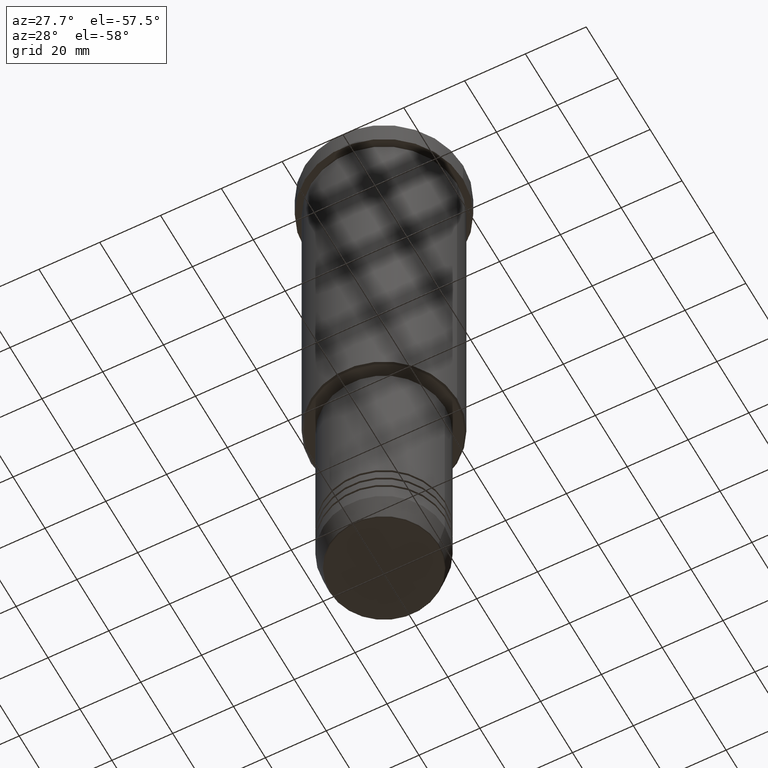
[diagram: clean part render]
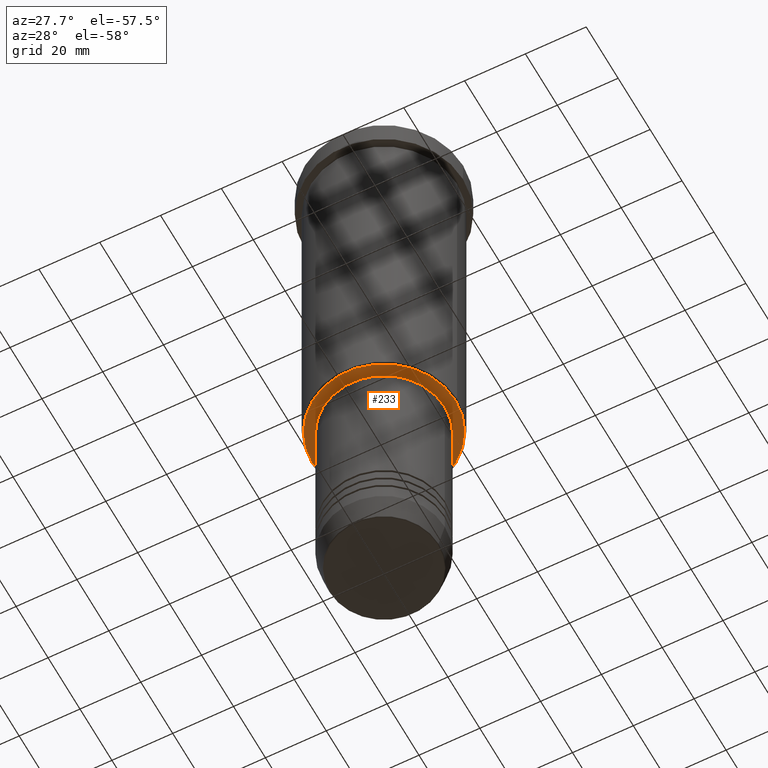
[diagram: same view with one face highlighted and labeled with its STEP entity id]
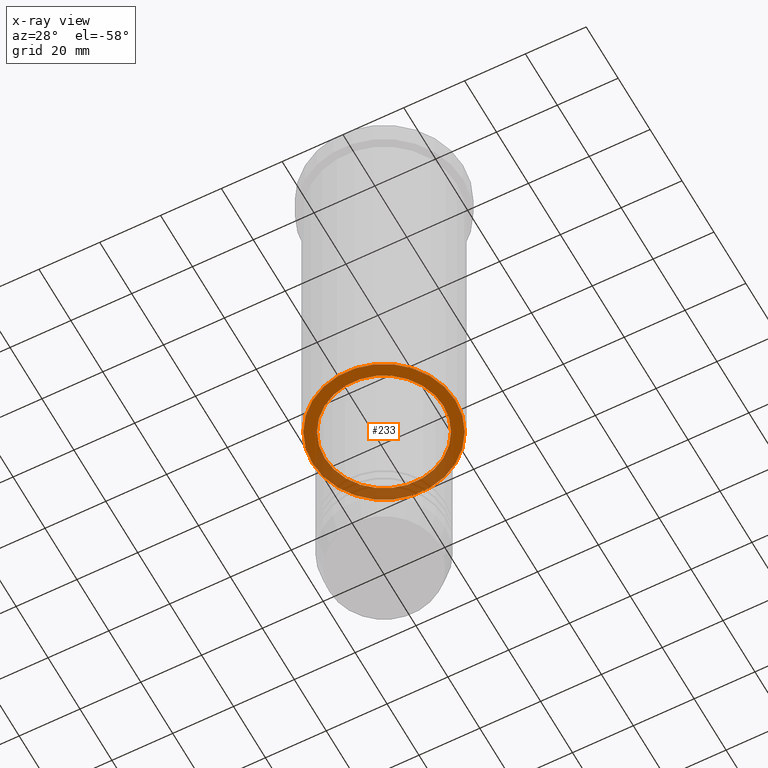
[diagram: x-ray of the same camera — body ghosted, the highlighted face saturated]
A machine part, auxiliary view. The second image highlights one B-rep face of the part: STEP entity #233.
The next image is the same camera in x-ray: the body ghosted, the highlighted face saturated — about 36% of this face is hidden behind the body in this view.
In plain terms, the highlighted planar face has unit normal (0, 0, -1).
Its self-contained STEP definition (entity closure, byte-faithful):
#109 = VERTEX_POINT ( 'NONE', #297 ) ;
#117 = EDGE_CURVE ( 'NONE', #669, #109, #712, .T. ) ;
#134 = FACE_OUTER_BOUND ( 'NONE', #164, .T. ) ;
#155 = CARTESIAN_POINT ( 'NONE',  ( 0.000000000000000000, 24.00000000000000000, -126.0000000000000000 ) ) ;
#164 = EDGE_LOOP ( 'NONE', ( #202, #564 ) ) ;
#202 = ORIENTED_EDGE ( 'NONE', *, *, #117, .T. ) ;
#205 = AXIS2_PLACEMENT_3D ( 'NONE', #666, #589, #724 ) ;
#219 = DIRECTION ( 'NONE',  ( 0.000000000000000000, 0.000000000000000000, -1.000000000000000000 ) ) ;
#233 = ADVANCED_FACE ( 'NONE', ( #134, #787 ), #330, .T. ) ;
#267 = DIRECTION ( 'NONE',  ( 1.000000000000000000, 0.000000000000000000, 0.000000000000000000 ) ) ;
#282 = ORIENTED_EDGE ( 'NONE', *, *, #837, .T. ) ;
#293 = CIRCLE ( 'NONE', #1027, 19.50000000000000355 ) ;
#297 = CARTESIAN_POINT ( 'NONE',  ( -23.50000000000001776, 2.908536147974965291E-15, -126.0000000000000000 ) ) ;
#330 = PLANE ( 'NONE',  #929 ) ;
#346 = AXIS2_PLACEMENT_3D ( 'NONE', #1153, #219, #402 ) ;
#362 = CARTESIAN_POINT ( 'NONE',  ( 0.000000000000000000, 0.000000000000000000, -126.0000000000000000 ) ) ;
#387 = AXIS2_PLACEMENT_3D ( 'NONE', #899, #1173, #267 ) ;
#402 = DIRECTION ( 'NONE',  ( -1.000000000000000000, 0.000000000000000000, 0.000000000000000000 ) ) ;
#412 = EDGE_CURVE ( 'NONE', #1058, #730, #592, .T. ) ;
#496 = DIRECTION ( 'NONE',  ( 0.000000000000000000, 0.000000000000000000, -1.000000000000000000 ) ) ;
#546 = DIRECTION ( 'NONE',  ( -0.000000000000000000, -0.000000000000000000, 1.000000000000000000 ) ) ;
#564 = ORIENTED_EDGE ( 'NONE', *, *, #1122, .T. ) ;
#589 = DIRECTION ( 'NONE',  ( 0.000000000000000000, 0.000000000000000000, -1.000000000000000000 ) ) ;
#592 = CIRCLE ( 'NONE', #387, 19.50000000000000355 ) ;
#613 = DIRECTION ( 'NONE',  ( 1.000000000000000000, 0.000000000000000000, 0.000000000000000000 ) ) ;
#666 = CARTESIAN_POINT ( 'NONE',  ( 0.000000000000000000, 0.000000000000000000, -126.0000000000000000 ) ) ;
#669 = VERTEX_POINT ( 'NONE', #702 ) ;
#676 = DIRECTION ( 'NONE',  ( -1.000000000000000000, 0.000000000000000000, -0.000000000000000000 ) ) ;
#702 = CARTESIAN_POINT ( 'NONE',  ( 23.50000000000001776, 0.000000000000000000, -126.0000000000000000 ) ) ;
#712 = CIRCLE ( 'NONE', #205, 23.50000000000001776 ) ;
#724 = DIRECTION ( 'NONE',  ( -1.000000000000000000, 0.000000000000000000, 0.000000000000000000 ) ) ;
#730 = VERTEX_POINT ( 'NONE', #835 ) ;
#733 = CIRCLE ( 'NONE', #346, 23.50000000000001776 ) ;
#787 = FACE_BOUND ( 'NONE', #916, .T. ) ;
#835 = CARTESIAN_POINT ( 'NONE',  ( 19.50000000000000355, 0.000000000000000000, -126.0000000000000000 ) ) ;
#837 = EDGE_CURVE ( 'NONE', #730, #1058, #293, .T. ) ;
#899 = CARTESIAN_POINT ( 'NONE',  ( 0.000000000000000000, 0.000000000000000000, -126.0000000000000000 ) ) ;
#916 = EDGE_LOOP ( 'NONE', ( #282, #1124 ) ) ;
#929 = AXIS2_PLACEMENT_3D ( 'NONE', #155, #496, #676 ) ;
#1027 = AXIS2_PLACEMENT_3D ( 'NONE', #362, #546, #613 ) ;
#1058 = VERTEX_POINT ( 'NONE', #1059 ) ;
#1059 = CARTESIAN_POINT ( 'NONE',  ( -19.50000000000000355, 2.388061258337339333E-15, -126.0000000000000000 ) ) ;
#1122 = EDGE_CURVE ( 'NONE', #109, #669, #733, .T. ) ;
#1124 = ORIENTED_EDGE ( 'NONE', *, *, #412, .T. ) ;
#1153 = CARTESIAN_POINT ( 'NONE',  ( 0.000000000000000000, 0.000000000000000000, -126.0000000000000000 ) ) ;
#1173 = DIRECTION ( 'NONE',  ( -0.000000000000000000, -0.000000000000000000, 1.000000000000000000 ) ) ;